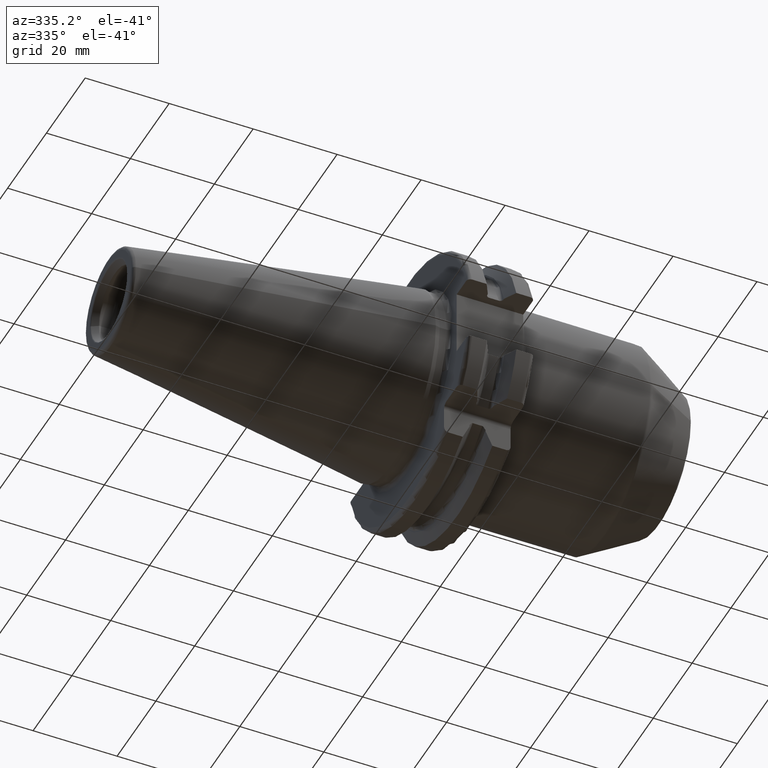
[diagram: clean part render]
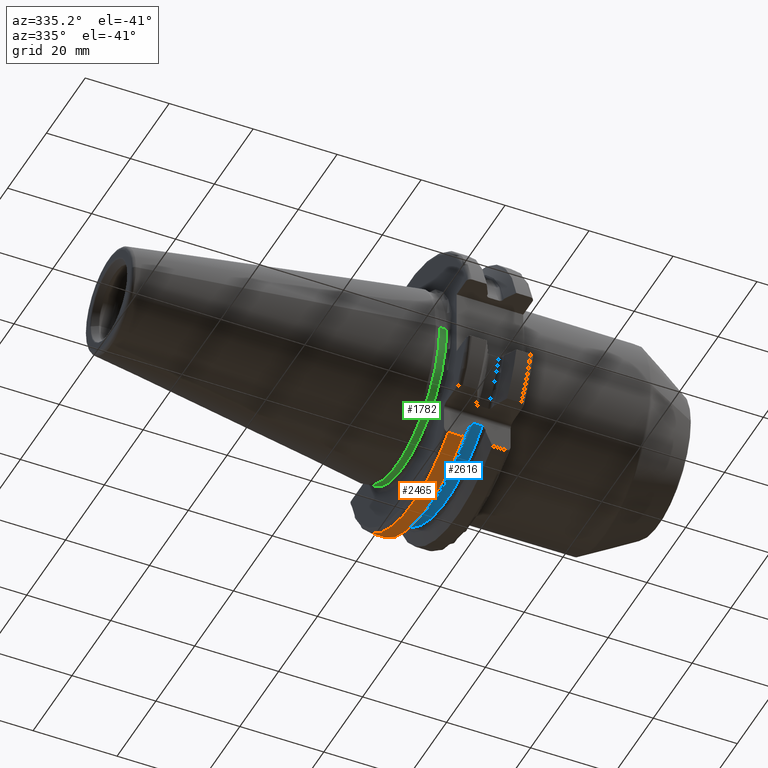
[diagram: same view with three faces highlighted in distinct colors, each labeled with its STEP entity id]
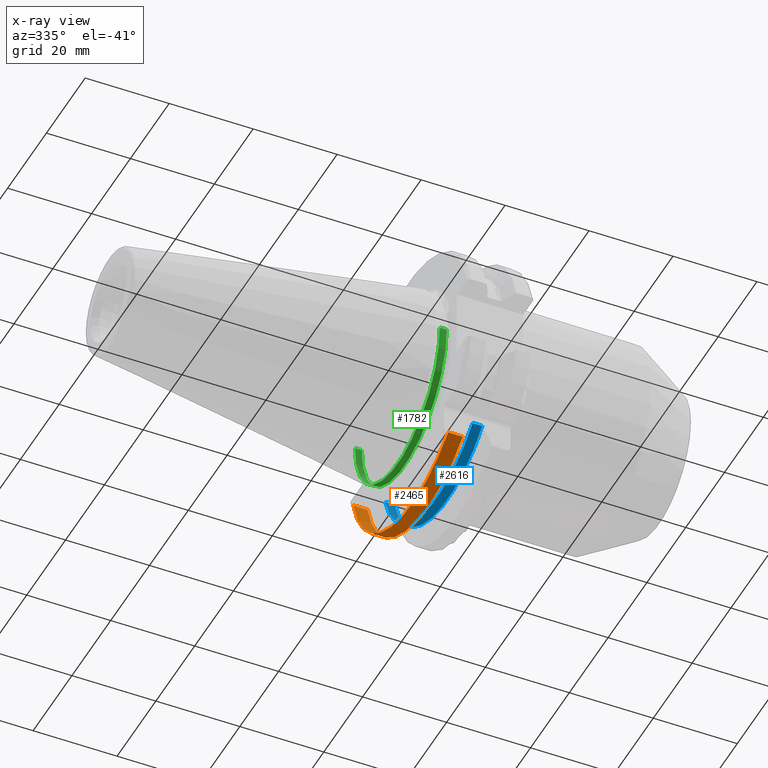
[diagram: x-ray of the same camera — body ghosted, the three highlighted faces saturated]
A machine part, auxiliary view with three faces highlighted in distinct colors.
The next image is the same camera in x-ray (body ghosted, the three faces saturated) — at least one of them is partly hidden behind the body in this view.
Their STEP definitions:

[orange] entity #2465 — the highlighted cylindrical surface (partial cylindrical patch) has radius 31.7625 mm, axis along (1, 0, 0).
#678=DIRECTION('',(1.E0,0.E0,0.E0));
#679=VECTOR('',#678,3.445946479578E0);
#680=CARTESIAN_POINT('',(4.2E0,3.071231684927E1,-8.1E0));
#681=LINE('',#680,#679);
#682=DIRECTION('',(1.E0,0.E0,0.E0));
#683=VECTOR('',#682,3.445946479578E0);
#684=CARTESIAN_POINT('',(4.2E0,-1.835E1,-2.592554543785E1));
#685=LINE('',#684,#683);
#686=CARTESIAN_POINT('',(7.645946479578E0,0.E0,0.E0));
#687=DIRECTION('',(1.E0,0.E0,0.E0));
#688=DIRECTION('',(0.E0,-5.777253049980E-1,-8.162312613254E-1));
#689=AXIS2_PLACEMENT_3D('',#686,#687,#688);
#762=CARTESIAN_POINT('',(4.2E0,0.E0,0.E0));
#763=DIRECTION('',(-1.E0,0.E0,0.E0));
#764=DIRECTION('',(0.E0,9.669363825036E-1,-2.550177095632E-1));
#765=AXIS2_PLACEMENT_3D('',#762,#763,#764);
#799=CARTESIAN_POINT('',(7.645946479578E0,3.071231684927E1,-8.1E0));
#806=CARTESIAN_POINT('',(7.645946479578E0,-1.835E1,-2.592554543785E1));
#1515=VERTEX_POINT('',#799);
#1553=CARTESIAN_POINT('',(4.2E0,3.071231684927E1,-8.1E0));
#1554=VERTEX_POINT('',#1553);
#1576=CARTESIAN_POINT('',(4.2E0,-1.835E1,-2.592554543785E1));
#1577=VERTEX_POINT('',#1576);
#1634=VERTEX_POINT('',#806);
#2452=CARTESIAN_POINT('',(-7.2615E1,0.E0,0.E0));
#2453=DIRECTION('',(1.E0,0.E0,0.E0));
#2454=DIRECTION('',(0.E0,-1.E0,0.E0));
#2455=AXIS2_PLACEMENT_3D('',#2452,#2453,#2454);
#2456=CYLINDRICAL_SURFACE('',#2455,3.17625E1);
#2457=ORIENTED_EDGE('',*,*,#1964,.F.);
#2459=ORIENTED_EDGE('',*,*,#2458,.T.);
#2460=ORIENTED_EDGE('',*,*,#2417,.T.);
#2462=ORIENTED_EDGE('',*,*,#2461,.T.);
#2463=EDGE_LOOP('',(#2457,#2459,#2460,#2462));
#2464=FACE_OUTER_BOUND('',#2463,.F.);
#2465=ADVANCED_FACE('',(#2464),#2456,.T.);
#690=CIRCLE('',#689,3.17625E1);
#766=CIRCLE('',#765,3.17625E1);
#1964=EDGE_CURVE('',#1554,#1515,#681,.T.);
#2417=EDGE_CURVE('',#1577,#1634,#685,.T.);
#2458=EDGE_CURVE('',#1554,#1577,#766,.T.);
#2461=EDGE_CURVE('',#1634,#1515,#690,.T.);

[blue] entity #2616 — the highlighted cylindrical surface (partial cylindrical patch) has radius 28 mm, axis along (1, 0, 0).
#871=CARTESIAN_POINT('',(1.23375E1,0.E0,0.E0));
#872=DIRECTION('',(-1.E0,0.E0,0.E0));
#873=DIRECTION('',(0.E0,9.572427986202E-1,-2.892857142857E-1));
#874=AXIS2_PLACEMENT_3D('',#871,#872,#873);
#914=DIRECTION('',(1.E0,0.E0,0.E0));
#915=VECTOR('',#914,2.325E0);
#916=CARTESIAN_POINT('',(1.00125E1,2.680279836137E1,-8.1E0));
#917=LINE('',#916,#915);
#918=CARTESIAN_POINT('',(1.00125E1,0.E0,0.E0));
#919=DIRECTION('',(-1.E0,0.E0,0.E0));
#920=DIRECTION('',(0.E0,9.572427986202E-1,-2.892857142857E-1));
#921=AXIS2_PLACEMENT_3D('',#918,#919,#920);
#923=DIRECTION('',(1.E0,0.E0,0.E0));
#924=VECTOR('',#923,2.325E0);
#925=CARTESIAN_POINT('',(1.00125E1,-1.835E1,-2.114893614346E1));
#926=LINE('',#925,#924);
#949=CARTESIAN_POINT('',(1.00125E1,2.680279836137E1,-8.1E0));
#1507=VERTEX_POINT('',#949);
#1509=CARTESIAN_POINT('',(1.23375E1,2.680279836137E1,-8.1E0));
#1510=VERTEX_POINT('',#1509);
#1564=CARTESIAN_POINT('',(1.00125E1,-1.835E1,-2.114893614346E1));
#1565=VERTEX_POINT('',#1564);
#1566=CARTESIAN_POINT('',(1.23375E1,-1.835E1,-2.114893614346E1));
#1567=VERTEX_POINT('',#1566);
#2604=CARTESIAN_POINT('',(7.293041127536E0,0.E0,0.E0));
#2605=DIRECTION('',(1.E0,0.E0,0.E0));
#2606=DIRECTION('',(0.E0,-1.E0,0.E0));
#2607=AXIS2_PLACEMENT_3D('',#2604,#2605,#2606);
#2608=CYLINDRICAL_SURFACE('',#2607,2.8E1);
#2609=ORIENTED_EDGE('',*,*,#1972,.F.);
#2611=ORIENTED_EDGE('',*,*,#2610,.T.);
#2612=ORIENTED_EDGE('',*,*,#2410,.T.);
#2613=ORIENTED_EDGE('',*,*,#2584,.F.);
#2614=EDGE_LOOP('',(#2609,#2611,#2612,#2613));
#2615=FACE_OUTER_BOUND('',#2614,.F.);
#2616=ADVANCED_FACE('',(#2615),#2608,.T.);
#875=CIRCLE('',#874,2.8E1);
#922=CIRCLE('',#921,2.8E1);
#1972=EDGE_CURVE('',#1507,#1510,#917,.T.);
#2410=EDGE_CURVE('',#1565,#1567,#926,.T.);
#2584=EDGE_CURVE('',#1510,#1567,#875,.T.);
#2610=EDGE_CURVE('',#1507,#1565,#922,.T.);

[green] entity #1782 — the highlighted cylindrical surface (partial cylindrical patch) has radius 21.875 mm, axis along (1, 0, 0).
#68=CARTESIAN_POINT('',(5.5E-1,0.E0,0.E0));
#69=DIRECTION('',(-1.E0,0.E0,0.E0));
#70=DIRECTION('',(0.E0,1.E0,0.E0));
#71=AXIS2_PLACEMENT_3D('',#68,#69,#70);
#83=DIRECTION('',(-1.E0,0.E0,0.E0));
#84=VECTOR('',#83,1.65E0);
#85=CARTESIAN_POINT('',(2.2E0,2.1875E1,0.E0));
#86=LINE('',#85,#84);
#87=DIRECTION('',(-1.E0,0.E0,0.E0));
#88=VECTOR('',#87,1.65E0);
#89=CARTESIAN_POINT('',(2.2E0,-2.1875E1,0.E0));
#90=LINE('',#89,#88);
#91=CARTESIAN_POINT('',(2.2E0,0.E0,0.E0));
#92=DIRECTION('',(-1.E0,0.E0,0.E0));
#93=DIRECTION('',(0.E0,1.E0,0.E0));
#94=AXIS2_PLACEMENT_3D('',#91,#92,#93);
#1387=CARTESIAN_POINT('',(2.2E0,2.1875E1,0.E0));
#1388=CARTESIAN_POINT('',(5.5E-1,2.1875E1,0.E0));
#1389=VERTEX_POINT('',#1387);
#1390=VERTEX_POINT('',#1388);
#1392=CARTESIAN_POINT('',(2.2E0,-2.1875E1,0.E0));
#1394=VERTEX_POINT('',#1392);
#1395=CARTESIAN_POINT('',(5.5E-1,-2.1875E1,0.E0));
#1396=VERTEX_POINT('',#1395);
#1770=CARTESIAN_POINT('',(-7.2615E1,0.E0,0.E0));
#1771=DIRECTION('',(1.E0,0.E0,0.E0));
#1772=DIRECTION('',(0.E0,-1.E0,0.E0));
#1773=AXIS2_PLACEMENT_3D('',#1770,#1771,#1772);
#1774=CYLINDRICAL_SURFACE('',#1773,2.1875E1);
#1775=ORIENTED_EDGE('',*,*,#1760,.T.);
#1776=ORIENTED_EDGE('',*,*,#1737,.T.);
#1777=ORIENTED_EDGE('',*,*,#1764,.F.);
#1779=ORIENTED_EDGE('',*,*,#1778,.F.);
#1780=EDGE_LOOP('',(#1775,#1776,#1777,#1779));
#1781=FACE_OUTER_BOUND('',#1780,.F.);
#1782=ADVANCED_FACE('',(#1781),#1774,.T.);
#72=CIRCLE('',#71,2.1875E1);
#95=CIRCLE('',#94,2.1875E1);
#1737=EDGE_CURVE('',#1390,#1396,#72,.T.);
#1760=EDGE_CURVE('',#1389,#1390,#86,.T.);
#1764=EDGE_CURVE('',#1394,#1396,#90,.T.);
#1778=EDGE_CURVE('',#1389,#1394,#95,.T.);